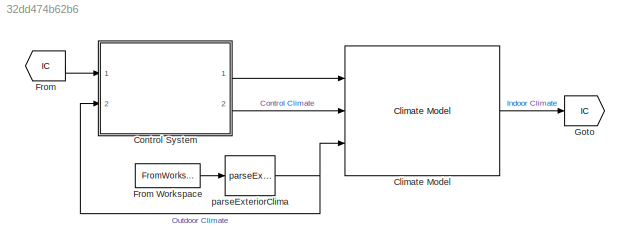
MODEL slx_32dd474b62b6
KIND model
CONFIG AbsTol = auto
CONFIG EnableMultiTasking = off
CONFIG FixedStep = auto
CONFIG MaxStep = auto
CONFIG MinStep = auto
CONFIG RelTol = 1e-3
CONFIG SampleTimeConstraint = Unconstrained
CONFIG SolverName = VariableStepAuto
CONFIG StartTime = 0.0
CONFIG StopTime = 5
BLOCK [Reference] Climate Model  REF=HORTISIM/Climate/Models/Climate Model
  Ports = [3, 1]
  SourceBlock = HORTISIM/Climate/Models/Climate Model
  SourceProductName = Horti Simulator
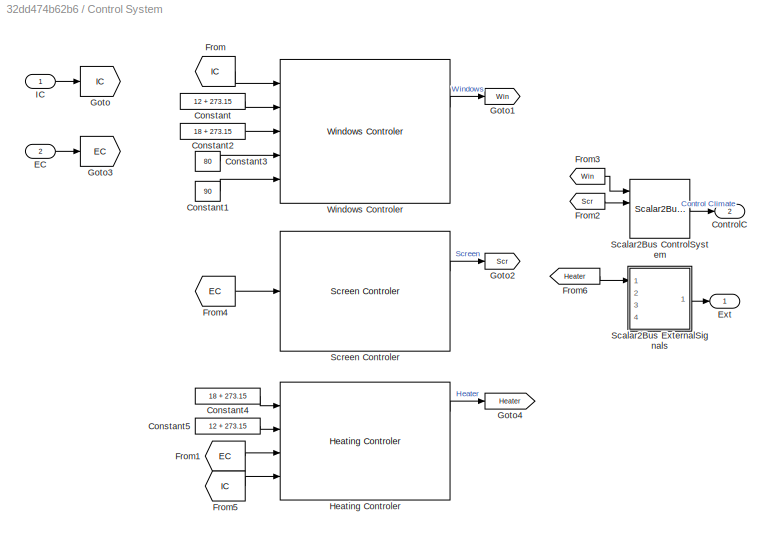
BLOCK [SubSystem] Control System
  Ports = [2, 2]
  RequestExecContextInheritance = off
BLOCK [Constant] Control System/Constant
  Value = 12 + 273.15
BLOCK [Constant] Control System/Constant1
  Value = 90
BLOCK [Constant] Control System/Constant2
  Value = 18 + 273.15
BLOCK [Constant] Control System/Constant3
  Value = 80
BLOCK [Constant] Control System/Constant4
  Value = 18 + 273.15
BLOCK [Constant] Control System/Constant5
  Value = 12 + 273.15
BLOCK [Outport] Control System/ControlC
  Port = 2
BLOCK [Inport] Control System/EC
  Port = 2
BLOCK [Outport] Control System/Ext
BLOCK [From] Control System/From
  GotoTag = IC
BLOCK [From] Control System/From1
  GotoTag = EC
BLOCK [From] Control System/From2
  GotoTag = Scr
BLOCK [From] Control System/From3
  GotoTag = Win
BLOCK [From] Control System/From4
  GotoTag = EC
BLOCK [From] Control System/From5
  GotoTag = IC
BLOCK [From] Control System/From6
  GotoTag = Heater
BLOCK [Goto] Control System/Goto
  GotoTag = IC
BLOCK [Goto] Control System/Goto1
  GotoTag = Win
BLOCK [Goto] Control System/Goto2
  GotoTag = Scr
BLOCK [Goto] Control System/Goto3
  GotoTag = EC
BLOCK [Goto] Control System/Goto4
  GotoTag = Heater
BLOCK [Reference] Control System/Heating Controler  REF=HORTISIM/Climate/Controls/Heating Controler
  NameLocation = top
  Ports = [4, 3]
  SourceBlock = HORTISIM/Climate/Controls/Heating Controler
  SourceProductName = Horti Simulator
BLOCK [Inport] Control System/IC
BLOCK [Reference] Control System/Scalar2Bus ControlSystem  REF=HORTISIM/Other 
Functions/Scalar2Bus 
Control Climate
  Ports = [4, 1]
  SourceBlock = HORTISIM/Other \nFunctions/Scalar2Bus \nControl Climate
  SourceProductName = Horti Simulator
  SourceType = SubSystem
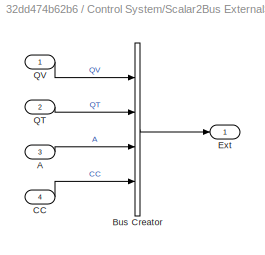
BLOCK [SubSystem] Control System/Scalar2Bus ExternalSignals
  Ports = [4, 1]
  RequestExecContextInheritance = off
BLOCK [Inport] Control System/Scalar2Bus ExternalSignals/A
  Port = 3
BLOCK [BusCreator] Control System/Scalar2Bus ExternalSignals/Bus Creator
  DisplayOption = bar
  InheritFromInputs = on
  Inputs = 4
  Ports = [4, 1]
BLOCK [Inport] Control System/Scalar2Bus ExternalSignals/CC
  Port = 4
BLOCK [Outport] Control System/Scalar2Bus ExternalSignals/Ext
BLOCK [Inport] Control System/Scalar2Bus ExternalSignals/QT
  Port = 2
BLOCK [Inport] Control System/Scalar2Bus ExternalSignals/QV
BLOCK [Reference] Control System/Screen Controler  REF=HORTISIM/Climate/Controls/Screen Controler
  NameLocation = top
  Ports = [1, 2]
  SourceBlock = HORTISIM/Climate/Controls/Screen Controler
  SourceProductName = Horti Simulator
BLOCK [Reference] Control System/Windows Controler  REF=HORTISIM/Climate/Controls/Windows Controler
  NameLocation = top
  Ports = [5, 2]
  SourceBlock = HORTISIM/Climate/Controls/Windows Controler
  SourceProductName = Horti Simulator
BLOCK [From] From
  GotoTag = IC
BLOCK [FromWorkspace] From Workspace
  VariableName = climate
BLOCK [Goto] Goto
  GotoTag = IC
BLOCK [Reference] parseExteriorClima  REF=HORTISIM/Other 
Functions/parseExteriorClima
  Ports = [1, 1]
  SourceBlock = HORTISIM/Other \nFunctions/parseExteriorClima
  SourceProductName = Horti Simulator
  SourceType = SubSystem
LINE Climate Model:1 -> Goto:1
LINE Control System/Constant1:1 -> Control System/Windows Controler:5
LINE Control System/Constant2:1 -> Control System/Windows Controler:3
LINE Control System/Constant3:1 -> Control System/Windows Controler:4
LINE Control System/Constant4:1 -> Control System/Heating Controler:1
LINE Control System/Constant5:1 -> Control System/Heating Controler:2
LINE Control System/Constant:1 -> Control System/Windows Controler:2
LINE Control System/EC:1 -> Control System/Goto3:1
LINE Control System/From1:1 -> Control System/Heating Controler:3
LINE Control System/From2:1 -> Control System/Scalar2Bus ControlSystem:2
LINE Control System/From3:1 -> Control System/Scalar2Bus ControlSystem:1
LINE Control System/From4:1 -> Control System/Screen Controler:1
LINE Control System/From5:1 -> Control System/Heating Controler:4
LINE Control System/From6:1 -> Control System/Scalar2Bus ExternalSignals:1
LINE Control System/From:1 -> Control System/Windows Controler:1
LINE Control System/Heating Controler:1 -> Control System/Goto4:1
LINE Control System/IC:1 -> Control System/Goto:1
LINE Control System/Scalar2Bus ControlSystem:1 -> Control System/ControlC:1
LINE Control System/Scalar2Bus ExternalSignals/A:1 -> Control System/Scalar2Bus ExternalSignals/Bus Creator:3
LINE Control System/Scalar2Bus ExternalSignals/Bus Creator:1 -> Control System/Scalar2Bus ExternalSignals/Ext:1
LINE Control System/Scalar2Bus ExternalSignals/CC:1 -> Control System/Scalar2Bus ExternalSignals/Bus Creator:4
LINE Control System/Scalar2Bus ExternalSignals/QT:1 -> Control System/Scalar2Bus ExternalSignals/Bus Creator:2
LINE Control System/Scalar2Bus ExternalSignals/QV:1 -> Control System/Scalar2Bus ExternalSignals/Bus Creator:1
LINE Control System/Scalar2Bus ExternalSignals:1 -> Control System/Ext:1
LINE Control System/Screen Controler:1 -> Control System/Goto2:1
LINE Control System/Windows Controler:1 -> Control System/Goto1:1
LINE Control System:1 -> Climate Model:1
LINE Control System:2 -> Climate Model:2
LINE From Workspace:1 -> parseExteriorClima:1
LINE From:1 -> Control System:1
NET parseExteriorClima:1 -> Climate Model:3, Control System:2
note: NET lines group one-source signal fan-out (src -> all destinations, sorted); 1:1 wires keep LINE
